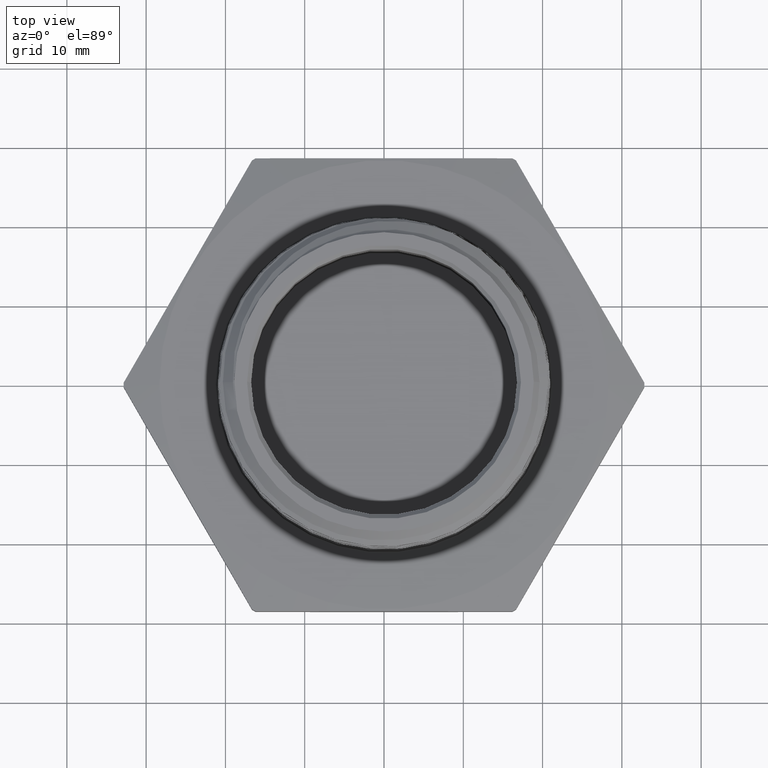
[diagram: clean part render]
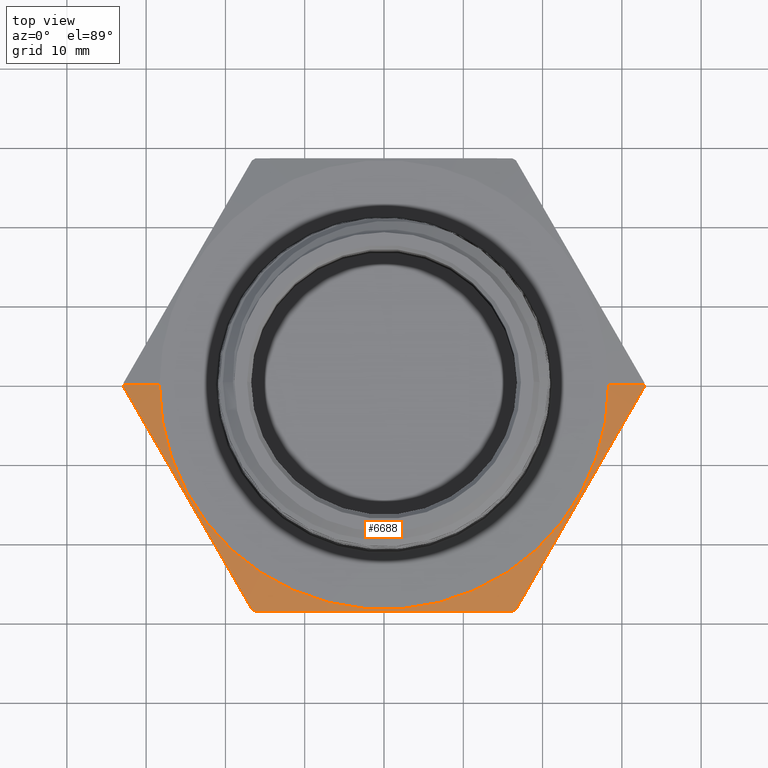
[diagram: same view with one face highlighted and labeled with its STEP entity id]
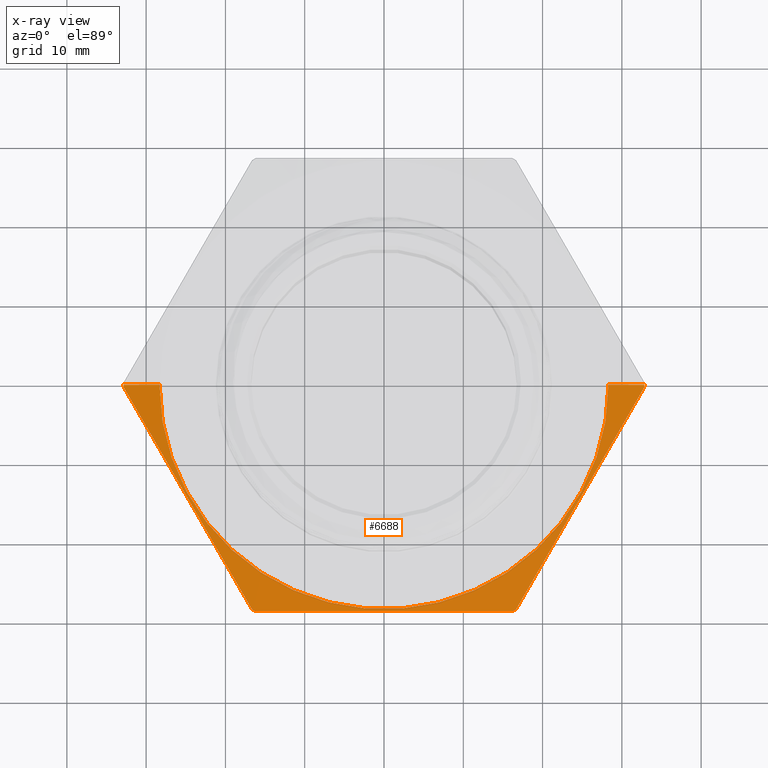
[diagram: x-ray of the same camera — body ghosted, the highlighted face saturated]
A machine part, top view. The second image highlights one B-rep face of the part: STEP entity #6688.
The next image is the same camera in x-ray: the body ghosted, the highlighted face saturated — about 0% of this face is hidden behind the body in this view.
In plain terms, the highlighted conical surface has half-angle 78 deg.
Its self-contained STEP definition (entity closure, byte-faithful):
#6 = CIRCLE ( 'NONE', #4146, 1.293038105676658200 ) ;
#14 = CIRCLE ( 'NONE', #4148, 1.293038105676658200 ) ;
#16 = CIRCLE ( 'NONE', #4151, 1.115000000000000200 ) ;
#59 = LINE ( 'NONE', #4516, #61 ) ;
#61 = VECTOR ( 'NONE', #4515, 39.37007874015748100 ) ;
#87 = CIRCLE ( 'NONE', #4183, 1.293038105676658200 ) ;
#90 = LINE ( 'NONE', #1902, #91 ) ;
#91 = VECTOR ( 'NONE', #1904, 39.37007874015748100 ) ;
#176 = FACE_OUTER_BOUND ( 'NONE', #4825, .T. ) ;
#183 = CONICAL_SURFACE ( 'NONE', #256, 1.115000000000000200, 1.361356816555583600 ) ;
#256 = AXIS2_PLACEMENT_3D ( 'NONE', #5757, #5758, #5756 ) ;
#340 = ORIENTED_EDGE ( 'NONE', *, *, #4031, .F. ) ;
#416 = ORIENTED_EDGE ( 'NONE', *, *, #4105, .T. ) ;
#417 = ORIENTED_EDGE ( 'NONE', *, *, #4077, .F. ) ;
#419 = ORIENTED_EDGE ( 'NONE', *, *, #4040, .T. ) ;
#420 = ORIENTED_EDGE ( 'NONE', *, *, #4108, .F. ) ;
#425 = ORIENTED_EDGE ( 'NONE', *, *, #4001, .F. ) ;
#428 = ORIENTED_EDGE ( 'NONE', *, *, #4002, .F. ) ;
#429 = ORIENTED_EDGE ( 'NONE', *, *, #4036, .F. ) ;
#1902 = CARTESIAN_POINT ( 'NONE',  ( -1.115000000000000200, 0.0000000000000000000, 0.2399999999999999900 ) ) ;
#1904 = DIRECTION ( 'NONE',  ( -0.9781476007338069100, 0.0000000000000000000, -0.2079116908177528500 ) ) ;
#1959 = CARTESIAN_POINT ( 'NONE',  ( 2.537041052526285200E-017, 0.0000000000000000000, 0.2021568324111266400 ) ) ;
#1960 = DIRECTION ( 'NONE',  ( -1.254986547952384500E-016, -0.0000000000000000000, -1.000000000000000000 ) ) ;
#1961 = DIRECTION ( 'NONE',  ( -1.000000000000000000, 0.0000000000000000000, 1.320459921903588800E-016 ) ) ;
#2609 = ORIENTED_EDGE ( 'NONE', *, *, #3997, .F. ) ;
#2610 = ORIENTED_EDGE ( 'NONE', *, *, #4004, .F. ) ;
#3997 = EDGE_CURVE ( 'NONE', #6247, #6315, #7715, .T. ) ;
#4001 = EDGE_CURVE ( 'NONE', #6295, #6333, #6644, .T. ) ;
#4002 = EDGE_CURVE ( 'NONE', #6303, #6252, #6645, .T. ) ;
#4004 = EDGE_CURVE ( 'NONE', #6315, #6289, #6647, .T. ) ;
#4031 = EDGE_CURVE ( 'NONE', #6289, #6295, #6, .T. ) ;
#4036 = EDGE_CURVE ( 'NONE', #6333, #6303, #14, .T. ) ;
#4040 = EDGE_CURVE ( 'NONE', #6236, #6220, #16, .T. ) ;
#4077 = EDGE_CURVE ( 'NONE', #6236, #6247, #59, .T. ) ;
#4105 = EDGE_CURVE ( 'NONE', #6220, #6250, #90, .T. ) ;
#4108 = EDGE_CURVE ( 'NONE', #6252, #6250, #87, .T. ) ;
#4142 = AXIS2_PLACEMENT_3D ( 'NONE', #5394, #5395, #5396 ) ;
#4146 = AXIS2_PLACEMENT_3D ( 'NONE', #4213, #4214, #4215 ) ;
#4148 = AXIS2_PLACEMENT_3D ( 'NONE', #4223, #4224, #4225 ) ;
#4151 = AXIS2_PLACEMENT_3D ( 'NONE', #4235, #4236, #4237 ) ;
#4183 = AXIS2_PLACEMENT_3D ( 'NONE', #1959, #1960, #1961 ) ;
#4213 = CARTESIAN_POINT ( 'NONE',  ( 2.537041052526285200E-017, 0.0000000000000000000, 0.2021568324111266400 ) ) ;
#4214 = DIRECTION ( 'NONE',  ( -1.254986547952384500E-016, -0.0000000000000000000, -1.000000000000000000 ) ) ;
#4215 = DIRECTION ( 'NONE',  ( -1.000000000000000000, 0.0000000000000000000, 1.320459921903588800E-016 ) ) ;
#4223 = CARTESIAN_POINT ( 'NONE',  ( 2.537041052526285200E-017, 0.0000000000000000000, 0.2021568324111266400 ) ) ;
#4224 = DIRECTION ( 'NONE',  ( -1.254986547952384500E-016, -0.0000000000000000000, -1.000000000000000000 ) ) ;
#4225 = DIRECTION ( 'NONE',  ( -1.000000000000000000, 0.0000000000000000000, 1.320459921903588800E-016 ) ) ;
#4235 = CARTESIAN_POINT ( 'NONE',  ( 3.011967715085720700E-017, 0.0000000000000000000, 0.2399999999999998500 ) ) ;
#4236 = DIRECTION ( 'NONE',  ( -1.254986547952384500E-016, -0.0000000000000000000, -1.000000000000000000 ) ) ;
#4237 = DIRECTION ( 'NONE',  ( -1.000000000000000000, 0.0000000000000000000, 1.225043943347203100E-016 ) ) ;
#4515 = DIRECTION ( 'NONE',  ( 0.9781476007338069100, 1.197885328332319900E-016, -0.2079116908177530700 ) ) ;
#4516 = CARTESIAN_POINT ( 'NONE',  ( 1.115000000000000200, 1.365481181049299100E-016, 0.2399999999999997400 ) ) ;
#4825 = EDGE_LOOP ( 'NONE', ( #417, #419, #416, #420, #428, #429, #425, #340, #2610, #2609 ) ) ;
#5392 = CARTESIAN_POINT ( 'NONE',  ( 0.4253646002358997800, -1.124999999999999800, 0.2222750160077573700 ) ) ;
#5394 = CARTESIAN_POINT ( 'NONE',  ( 2.537041052526285200E-017, 0.0000000000000000000, 0.2021568324111266400 ) ) ;
#5395 = DIRECTION ( 'NONE',  ( -1.254986547952384500E-016, -0.0000000000000000000, -1.000000000000000000 ) ) ;
#5396 = DIRECTION ( 'NONE',  ( -1.000000000000000000, 0.0000000000000000000, 1.320459921903588800E-016 ) ) ;
#5398 = CARTESIAN_POINT ( 'NONE',  ( 0.5314230091790969100, -1.124999999999999800, 0.2132652181881039800 ) ) ;
#5401 = CARTESIAN_POINT ( 'NONE',  ( -0.7086809359826067300, -1.022528612522657100, 0.2132890800781963900 ) ) ;
#5402 = CARTESIAN_POINT ( 'NONE',  ( 0.6374343438597278600, -1.124999999999999600, 0.2021568324111265600 ) ) ;
#5403 = CARTESIAN_POINT ( 'NONE',  ( -0.7618004646375844400, -0.9305228900181258300, 0.2223080740063901300 ) ) ;
#5404 = CARTESIAN_POINT ( 'NONE',  ( 0.2131198376507331100, -1.124999999999999800, 0.2345907898682854900 ) ) ;
#5405 = CARTESIAN_POINT ( 'NONE',  ( 0.1069326792767555100, -1.124999999999999800, 0.2378608906599504700 ) ) ;
#5406 = CARTESIAN_POINT ( 'NONE',  ( -0.1055877376458510300, -1.125000000000000000, 0.2378878926651545000 ) ) ;
#5407 = CARTESIAN_POINT ( 'NONE',  ( -0.2119210193021721100, -1.124999999999999800, 0.2346437637292744200 ) ) ;
#5408 = CARTESIAN_POINT ( 'NONE',  ( -0.4247182800637260300, -1.125000000000000000, 0.2223289654639876700 ) ) ;
#5409 = CARTESIAN_POINT ( 'NONE',  ( -0.5312776201662986500, -1.125000000000000000, 0.2132804527594522600 ) ) ;
#5410 = CARTESIAN_POINT ( 'NONE',  ( -0.6374343438597276400, -1.124999999999999600, 0.2021568324111267000 ) ) ;
#5412 = CARTESIAN_POINT ( 'NONE',  ( -0.6555614073276299100, -1.114534335027189000, 0.2021568324111267000 ) ) ;
#5414 = CARTESIAN_POINT ( 'NONE',  ( -0.8680395219475387500, -0.7465114450090629700, 0.2346186185401576400 ) ) ;
#5415 = CARTESIAN_POINT ( 'NONE',  ( -0.9742785792574932800, -0.5624999999999998900, 0.2411302502264421600 ) ) ;
#5416 = CARTESIAN_POINT ( 'NONE',  ( -1.080517636567448000, -0.3784885549909370300, 0.2346186185401576400 ) ) ;
#5417 = CARTESIAN_POINT ( 'NONE',  ( -1.186756693877402600, -0.1944771099818742300, 0.2223080740063901300 ) ) ;
#5418 = CARTESIAN_POINT ( 'NONE',  ( -1.239876222532379800, -0.1024713874773426900, 0.2132890800781963600 ) ) ;
#5419 = CARTESIAN_POINT ( 'NONE',  ( -1.292995751187357100, -0.01046566497281166200, 0.2021568324111268100 ) ) ;
#5420 = CARTESIAN_POINT ( 'NONE',  ( 1.239876222532379800, -0.1024713874773424300, 0.2132890800781960500 ) ) ;
#5422 = CARTESIAN_POINT ( 'NONE',  ( 1.186756693877402600, -0.1944771099818739800, 0.2223080740063898000 ) ) ;
#5430 = CARTESIAN_POINT ( 'NONE',  ( 1.292995751187357100, -0.01046566497281097900, 0.2021568324111264500 ) ) ;
#5432 = CARTESIAN_POINT ( 'NONE',  ( 1.080517636567447800, -0.3784885549909369800, 0.2346186185401573900 ) ) ;
#5433 = CARTESIAN_POINT ( 'NONE',  ( 0.9742785792574931700, -0.5625000000000002200, 0.2411302502264419400 ) ) ;
#5434 = CARTESIAN_POINT ( 'NONE',  ( 0.8680395219475387500, -0.7465114450090630800, 0.2346186185401575000 ) ) ;
#5435 = CARTESIAN_POINT ( 'NONE',  ( 0.7618004646375841100, -0.9305228900181260500, 0.2223080740063898600 ) ) ;
#5436 = CARTESIAN_POINT ( 'NONE',  ( 0.7086809359826066200, -1.022528612522657800, 0.2132890800781961900 ) ) ;
#5437 = CARTESIAN_POINT ( 'NONE',  ( 0.6555614073276295800, -1.114534335027189200, 0.2021568324111265600 ) ) ;
#5550 = CARTESIAN_POINT ( 'NONE',  ( -1.115000000000000200, 0.0000000000000000000, 0.2399999999999999900 ) ) ;
#5579 = CARTESIAN_POINT ( 'NONE',  ( 1.115000000000000200, 1.365481181049299100E-016, 0.2399999999999997400 ) ) ;
#5590 = CARTESIAN_POINT ( 'NONE',  ( 1.293038105676658200, 1.583514977292476600E-016, 0.2021568324111264500 ) ) ;
#5593 = CARTESIAN_POINT ( 'NONE',  ( -1.293038105676658200, 0.0000000000000000000, 0.2021568324111268100 ) ) ;
#5595 = CARTESIAN_POINT ( 'NONE',  ( -1.292995751187357100, -0.01046566497281166200, 0.2021568324111268100 ) ) ;
#5627 = CARTESIAN_POINT ( 'NONE',  ( 0.6374343438597278600, -1.124999999999999600, 0.2021568324111265600 ) ) ;
#5631 = CARTESIAN_POINT ( 'NONE',  ( 0.6555614073276295800, -1.114534335027189200, 0.2021568324111265600 ) ) ;
#5634 = CARTESIAN_POINT ( 'NONE',  ( -0.6555614073276299100, -1.114534335027189000, 0.2021568324111267000 ) ) ;
#5639 = CARTESIAN_POINT ( 'NONE',  ( 1.292995751187357100, -0.01046566497281097900, 0.2021568324111264500 ) ) ;
#5658 = CARTESIAN_POINT ( 'NONE',  ( -0.6374343438597276400, -1.124999999999999600, 0.2021568324111267000 ) ) ;
#5756 = DIRECTION ( 'NONE',  ( -1.000000000000000000, 0.0000000000000000000, 1.225043943347203100E-016 ) ) ;
#5757 = CARTESIAN_POINT ( 'NONE',  ( 3.011967715085720700E-017, 0.0000000000000000000, 0.2399999999999998500 ) ) ;
#5758 = DIRECTION ( 'NONE',  ( -1.254986547952384500E-016, -0.0000000000000000000, -1.000000000000000000 ) ) ;
#6220 = VERTEX_POINT ( 'NONE', #5550 ) ;
#6236 = VERTEX_POINT ( 'NONE', #5579 ) ;
#6247 = VERTEX_POINT ( 'NONE', #5590 ) ;
#6250 = VERTEX_POINT ( 'NONE', #5593 ) ;
#6252 = VERTEX_POINT ( 'NONE', #5595 ) ;
#6289 = VERTEX_POINT ( 'NONE', #5631 ) ;
#6295 = VERTEX_POINT ( 'NONE', #5627 ) ;
#6303 = VERTEX_POINT ( 'NONE', #5634 ) ;
#6315 = VERTEX_POINT ( 'NONE', #5639 ) ;
#6333 = VERTEX_POINT ( 'NONE', #5658 ) ;
#6644 = B_SPLINE_CURVE_WITH_KNOTS ( 'NONE', 3,
 ( #5402, #5398, #5392, #5404, #5405, #5406, #5407, #5408, #5409, #5410 ),
 .UNSPECIFIED., .F., .F.,
 ( 4, 2, 2, 2, 4 ),
 ( 0.06266755591143606500, 0.07078732428279715900, 0.07890709265415826700, 0.08702686102551936100, 0.09514662939688045600 ),
 .UNSPECIFIED. ) ;
#6645 = B_SPLINE_CURVE_WITH_KNOTS ( 'NONE', 3,
 ( #5412, #5401, #5403, #5414, #5415, #5416, #5417, #5418, #5419 ),
 .UNSPECIFIED., .F., .F.,
 ( 4, 2, 1, 2, 4 ),
 ( 1.908587031497364900E-006, 0.008097324754050032000, 0.01619274092106856600, 0.02428815708808710100, 0.03238357325510563000 ),
 .UNSPECIFIED. ) ;
#6647 = B_SPLINE_CURVE_WITH_KNOTS ( 'NONE', 3,
 ( #5430, #5420, #5422, #5432, #5433, #5434, #5435, #5436, #5437 ),
 .UNSPECIFIED., .F., .F.,
 ( 4, 2, 1, 2, 4 ),
 ( 1.908587031475776200E-006, 0.008097324754050014600, 0.01619274092106855500, 0.02428815708808709400, 0.03238357325510563000 ),
 .UNSPECIFIED. ) ;
#6688 = ADVANCED_FACE ( 'NONE', ( #176 ), #183, .T. ) ;
#7715 = CIRCLE ( 'NONE', #4142, 1.293038105676658200 ) ;